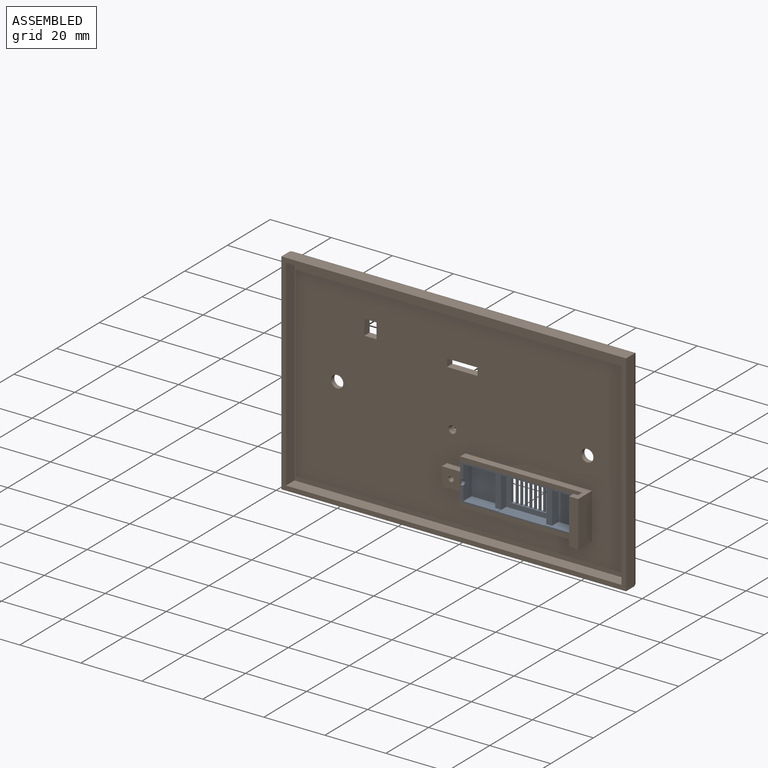
[diagram: assembled view]
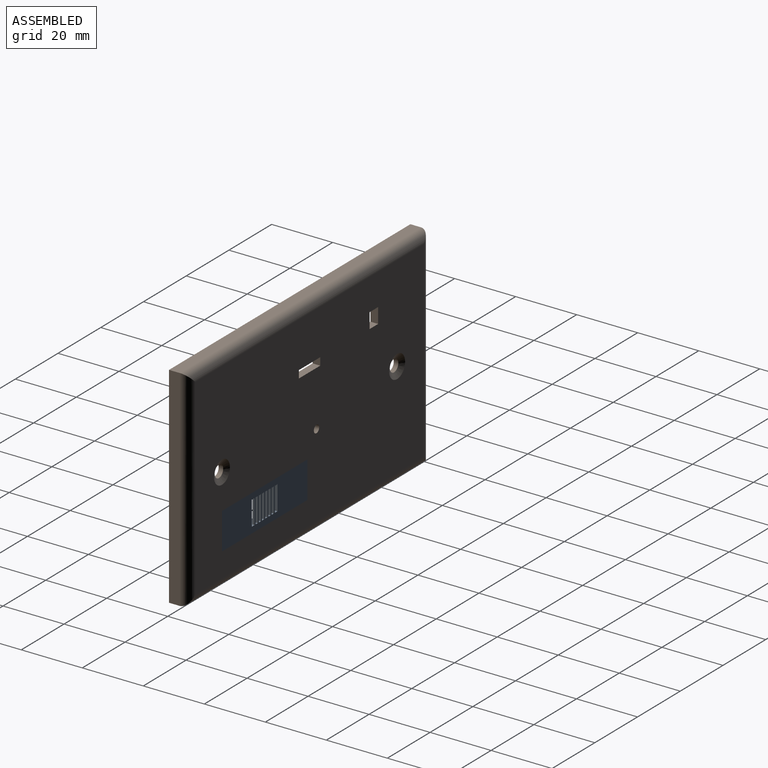
[diagram: assembled view, second angle]
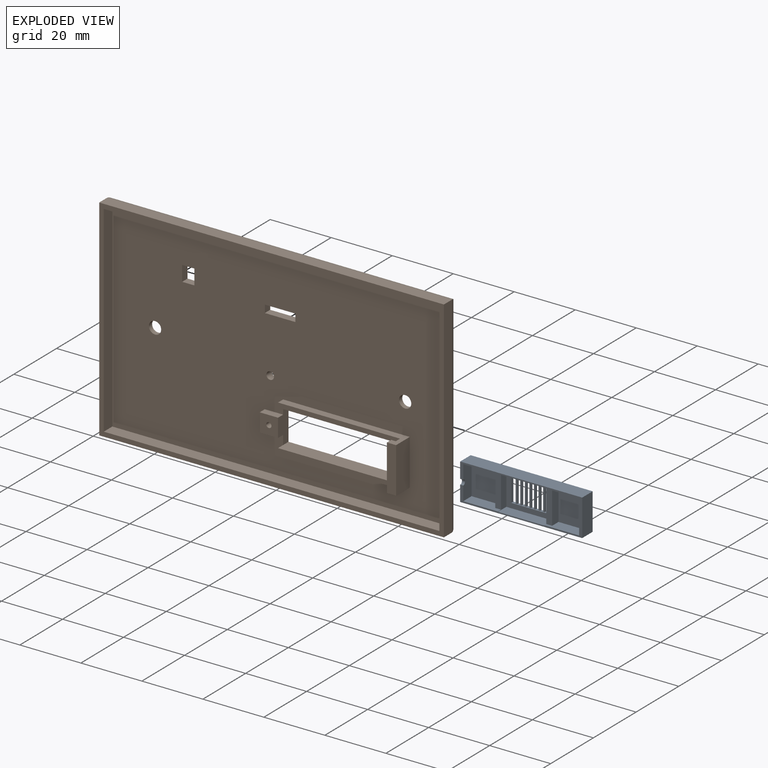
[diagram: exploded view]
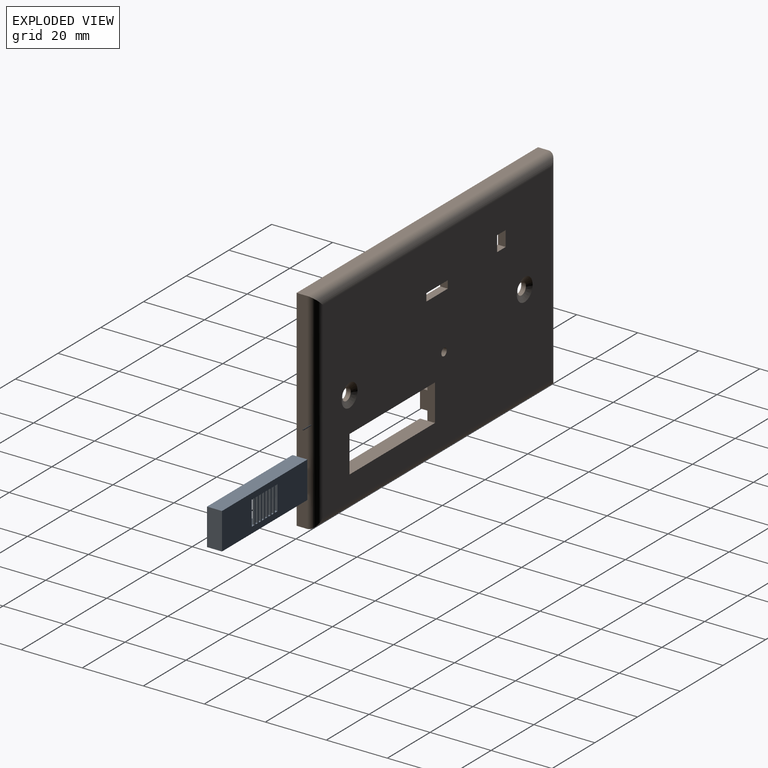
[diagram: exploded view, second angle]
ASSEMBLY  parts=2 mates=3
PART A: 49 faces, bbox 12x4.9x40 mm
  f0: plane 12x1mm, normal (-1,0,0), area 9.6mm2, adj f14,f17,f24,f27,f28,f29,f30,f31
  f1: plane 12x1mm, normal (1,0,0), area 9.5mm2, adj f14,f17,f24,f27,f28,f29,f30,f31
  f2: cylinder r=0.86mm len=1.71mm, axis (0,0,1), area 2.6mm2, adj f3,f4,f12
  f3: plane 11x3.9mm, normal (0,0,1), area 41.8mm2, adj f2,f4,f9,f10,f21
  f4: plane 40x12mm, normal (0,1,0), area 57.2mm2, adj f2,f3,f6,f7,f8,f9,f10,f11
  f5: plane 11x1.9mm, normal (0,1,0), area 20.9mm2, adj f6,f9,f10,f20
  f6: plane 11.2x3.9mm, normal (0,0,1), area 28.3mm2, adj f4,f5,f7,f9,f10,f13,f14
  f7: plane 15.2x3.9mm, normal (-1,0,0), area 59.3mm2, adj f4,f6,f8,f14
  f8: plane 11.2x3.9mm, normal (0,0,-1), area 33.8mm2, adj f4,f7,f13,f14,f15,f16,f23
  f9: plane 11.4x3.9mm, normal (-1,0,0), area 39.7mm2, adj f3,f4,f5,f6,f20,f21
  f10: plane 11.4x3.9mm, normal (1,0,0), area 39.7mm2, adj f3,f4,f5,f6,f20,f21
  f11: plane 40x4.9mm, normal (-1,0,0), area 196mm2, adj f4,f12,f25,f27
  f12: plane 12x4.9mm, normal (0,0,-1), area 57.7mm2, adj f2,f4,f11,f26,f27
  f13: plane 15.2x3.9mm, normal (1,0,0), area 59.3mm2, adj f4,f6,f8,f14
  f14: plane 15.2x11.2mm, normal (0,1,0), area 74.2mm2, adj f0,f1,f6,f7,f8,f13,f17,f24
  f15: plane 11.4x3.9mm, normal (1,0,0), area 38.8mm2, adj f4,f8,f18,f19,f22,f23
  f16: plane 11.4x3.9mm, normal (-1,0,0), area 38.8mm2, adj f4,f8,f18,f19,f22,f23
  f17: plane 8x1mm, normal (0,0,1), area 8mm2, adj f0,f1,f14,f27
  f18: plane 11x3mm, normal (0,0,1), area 33mm2, adj f15,f16,f19,f23
  f19: plane 11x9.5mm, normal (0,1,0), area 104.5mm2, adj f15,f16,f18,f22
  f20: plane 11x2.5mm, normal (0,0,-1), area 27.5mm2, adj f5,f9,f10,f21
  f21: plane 11x9.5mm, normal (0,1,0), area 104.5mm2, adj f3,f9,f10,f20
  f22: plane 11x3.9mm, normal (0,0,-1), area 42.9mm2, adj f4,f15,f16,f19
  f23: plane 11x1.9mm, normal (0,1,0), area 20.9mm2, adj f8,f15,f16,f18
  f24: plane 8x1mm, normal (0,0,-1), area 8mm2, adj f0,f1,f14,f27
  f25: plane 12x4.9mm, normal (0,0,1), area 58.8mm2, adj f4,f11,f26,f27
  f26: plane 40x4.9mm, normal (1,0,0), area 196mm2, adj f4,f12,f25,f27
  f27: plane 40x12mm, normal (0,-1,0), area 412mm2, adj f0,f1,f11,f12,f17,f24,f25,f26
  f28: plane 8x0.5mm, normal (0,1,0), area 4mm2, adj f0,f1,f29,f30
  f29: plane 8x0.7mm, normal (0,0,1), area 5.6mm2, adj f0,f1,f27,f28
  f30: plane 8x0.7mm, normal (0,0,-1), area 5.6mm2, adj f0,f1,f27,f28
  f31: plane 8x0.5mm, normal (0,1,0), area 4mm2, adj f0,f1,f32,f33
  f32: plane 8x0.7mm, normal (0,0,1), area 5.6mm2, adj f0,f1,f27,f31
  f33: plane 8x0.7mm, normal (0,0,-1), area 5.6mm2, adj f0,f1,f27,f31
  f34: plane 8x0.5mm, normal (0,1,0), area 4mm2, adj f0,f1,f35,f36
  f35: plane 8x0.7mm, normal (0,0,1), area 5.6mm2, adj f0,f1,f27,f34
  f36: plane 8x0.7mm, normal (0,0,-1), area 5.6mm2, adj f0,f1,f27,f34
  f37: plane 8x0.5mm, normal (0,1,0), area 4mm2, adj f0,f1,f38,f39
  f38: plane 8x0.7mm, normal (0,0,1), area 5.6mm2, adj f0,f1,f27,f37
  f39: plane 8x0.7mm, normal (0,0,-1), area 5.6mm2, adj f0,f1,f27,f37
  f40: plane 8x0.5mm, normal (0,1,0), area 4mm2, adj f0,f1,f41,f42
  f41: plane 8x0.7mm, normal (0,0,1), area 5.6mm2, adj f0,f1,f27,f40
  f42: plane 8x0.7mm, normal (0,0,-1), area 5.6mm2, adj f0,f1,f27,f40
  f43: plane 8x0.5mm, normal (0,1,0), area 4mm2, adj f0,f1,f44,f45
  f44: plane 8x0.7mm, normal (0,0,1), area 5.6mm2, adj f0,f1,f27,f43
  f45: plane 8x0.7mm, normal (0,0,-1), area 5.6mm2, adj f0,f1,f27,f43
  f46: plane 8x0.5mm, normal (0,1,0), area 4mm2, adj f0,f1,f47,f48
  f47: plane 8x0.7mm, normal (0,0,1), area 5.6mm2, adj f0,f1,f27,f46
  f48: plane 8x0.7mm, normal (0,0,-1), area 5.6mm2, adj f0,f1,f27,f46
PART B: 48 faces, bbox 113x8.9x69 mm
  f0: plane 110x66mm, normal (0,-1,0), area 6526.5mm2, adj f8,f9,f10,f11,f17,f18,f21,f22
  f1: plane 40x1.5mm, normal (0,-1,0), area 60mm2, adj f29,f30,f34,f35
  f2: plane 40x1.5mm, normal (0,-1,0), area 60mm2, adj f29,f32,f33,f37
  f3: plane 107x63mm, normal (0,1,0), area 6123.6mm2, adj f13,f14,f15,f16,f19,f20,f21,f22
  f4: plane 69x3.5mm, normal (1,0,0), area 241.5mm2, adj f5,f7,f12,f13
  f5: plane 113x3.5mm, normal (0,0,1), area 395.5mm2, adj f4,f6,f12,f14
  f6: plane 69x3.5mm, normal (-1,0,0), area 241.5mm2, adj f5,f7,f12,f16
  f7: plane 113x3.5mm, normal (0,0,-1), area 395.5mm2, adj f4,f6,f12,f15
  f8: plane 66x4mm, normal (1,0,0), area 264mm2, adj f0,f9,f11,f12
  f9: plane 110x4mm, normal (0,0,-1), area 440mm2, adj f0,f8,f10,f12
  f10: plane 66x4mm, normal (-1,0,0), area 264mm2, adj f0,f9,f11,f12
  f11: plane 110x4mm, normal (0,0,1), area 440mm2, adj f0,f8,f10,f12
  f12: plane 113x69mm, normal (0,-1,0), area 537mm2, adj f4,f5,f6,f7,f8,f9,f10,f11
  f13: cylinder r=3mm len=69mm, axis (0,0,1), area 314.9mm2, adj f3,f4,f14,f15
  f14: cylinder r=3mm len=113mm, axis (-1,0,0), area 522.2mm2, adj f3,f5,f13,f16
  f15: cylinder r=3mm len=113mm, axis (1,0,0), area 522.2mm2, adj f3,f7,f13,f16
  f16: cylinder r=3mm len=69mm, axis (0,0,-1), area 314.9mm2, adj f3,f6,f14,f15
  f17: cylinder r=2mm len=4mm, axis (0,1,0), area 18.8mm2, adj f0,f19
  f18: cylinder r=2mm len=4mm, axis (0,1,0), area 18.8mm2, adj f0,f20
  f19: cone r=2mm half-angle=60deg, axis (0,1,0), area 36mm2, adj f3,f17
  f20: cone r=2mm half-angle=60deg, axis (0,1,0), area 36mm2, adj f3,f18
  f21: plane 5x2.5mm, normal (-1,0,0), area 12.5mm2, adj f0,f3,f22,f24
  f22: plane 4x2.5mm, normal (0,0,1), area 10mm2, adj f0,f3,f21,f23
  f23: plane 5x2.5mm, normal (1,0,0), area 12.5mm2, adj f0,f3,f22,f24
  f24: plane 4x2.5mm, normal (0,0,-1), area 10mm2, adj f0,f3,f21,f23
  f25: plane 10x2.5mm, normal (0,0,-1), area 25mm2, adj f0,f3,f26,f28
  f26: plane 2.5x2.5mm, normal (-1,0,0), area 6.3mm2, adj f0,f3,f25,f27
  f27: plane 10x2.5mm, normal (0,0,1), area 25mm2, adj f0,f3,f26,f28
  f28: plane 2.5x2.5mm, normal (1,0,0), area 6.3mm2, adj f0,f3,f25,f27
  f29: plane 15x6.9mm, normal (-1,0,0), area 88.8mm2, adj f1,f2,f3,f30,f32,f35,f37,f46
  f30: plane 40x4.9mm, normal (0,0,1), area 196mm2, adj f1,f3,f29,f31,f34
  f31: plane 12x4.9mm, normal (1,0,0), area 44.4mm2, adj f0,f3,f30,f32,f38,f39,f41
  f32: plane 40x4.9mm, normal (0,0,-1), area 196mm2, adj f2,f3,f29,f31,f33
  f33: plane 2.4x1.5mm, normal (-1,0,0), area 3.6mm2, adj f0,f2,f32,f37
  f34: plane 2.4x1.5mm, normal (-1,0,0), area 3.6mm2, adj f0,f1,f30,f35
  f35: plane 41.5x6.4mm, normal (0,0,-1), area 108.6mm2, adj f0,f1,f29,f34,f36,f44,f45,f46
  f36: plane 15x6.4mm, normal (1,0,0), area 96mm2, adj f0,f35,f37,f45
  f37: plane 41.5x6.4mm, normal (0,0,1), area 108.6mm2, adj f0,f2,f29,f33,f36,f44,f45,f46
  f38: plane 6x6mm, normal (0,-1,0), area 33.7mm2, adj f31,f39,f40,f41,f42
  f39: plane 6x2.4mm, normal (0,0,1), area 14.4mm2, adj f0,f31,f38,f40
  f40: plane 6x2.4mm, normal (-1,0,0), area 14.4mm2, adj f0,f38,f39,f41
  f41: plane 6x2.4mm, normal (0,0,-1), area 14.4mm2, adj f0,f31,f38,f40
  f42: cylinder r=0.85mm len=2mm, axis (0,-1,0), area 10.7mm2, adj f38,f43
  f43: plane 1.7x1.7mm, normal (0,-1,0), area 2.3mm2, adj f42
  f44: plane 15x2mm, normal (-1,0,0), area 30mm2, adj f35,f37,f45,f46
  f45: plane 15x3mm, normal (0,-1,0), area 45mm2, adj f35,f36,f37,f44
  f46: plane 15x1.5mm, normal (0,1,0), area 22.5mm2, adj f29,f35,f37,f44
  f47: cylinder r=1.25mm len=2.5mm, axis (0,-1,0), area 19.6mm2, adj f0,f3
PLACE A rot(axis=(0.71,0,0.71),180deg) t=(0.75,-0.69,-23.49)mm
PLACE B t=(-0.25,4.31,0.01)mm fixed
MATE planar A.f25 <-> B.f29  axis (1,0,0) through (40.75,1.86,-11.49)mm
MATE planar A.f26 <-> B.f32  axis (0,0,1) through (20.75,1.86,-11.49)mm
MATE planar A.f27 <-> B.f3  axis (0,1,0) through (0.75,4.31,-17.49)mm
